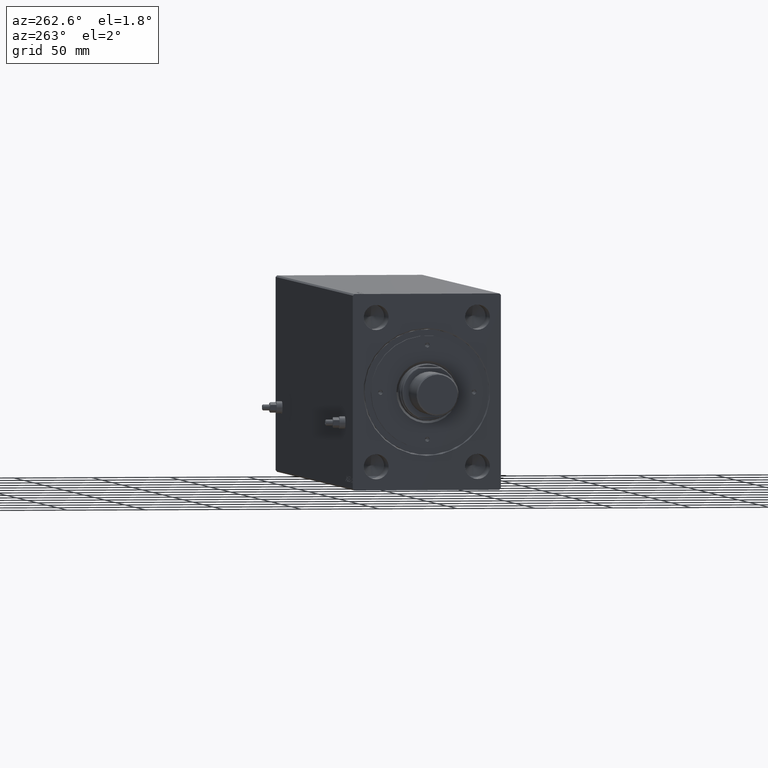
[diagram: clean part render]
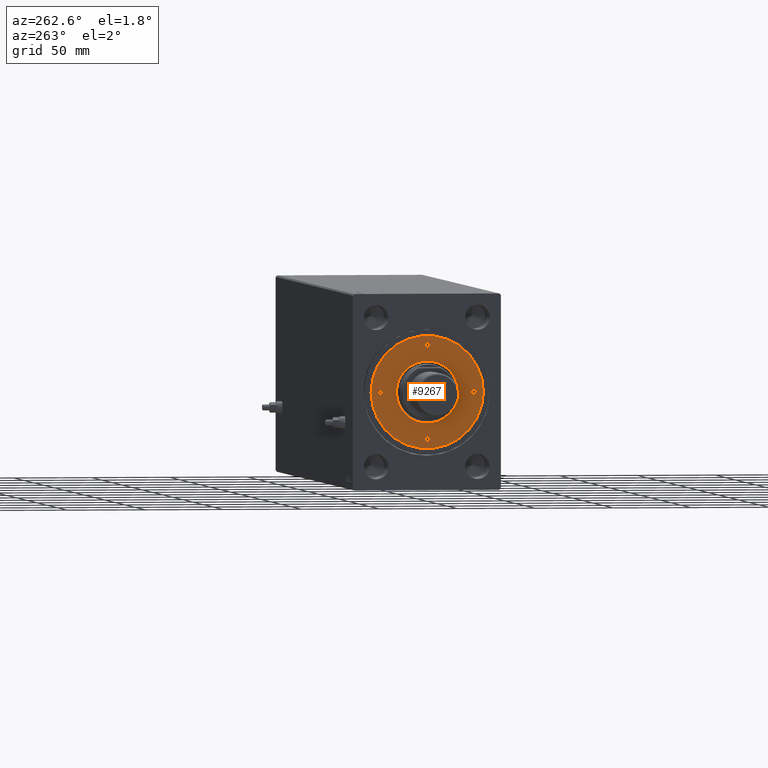
[diagram: same view with one face highlighted and labeled with its STEP entity id]
A machine part, auxiliary view. The second image highlights one B-rep face of the part: STEP entity #9267.
In plain terms, the highlighted planar face has unit normal (-1, 0, 0).
Its self-contained STEP definition (entity closure, byte-faithful):
#329 = DIRECTION ( 'NONE',  ( -0.000000000000000000, -0.000000000000000000, 1.000000000000000000 ) ) ;
#1784 = AXIS2_PLACEMENT_3D ( 'NONE', #24239, #20115, #17374 ) ;
#1953 = CARTESIAN_POINT ( 'NONE',  ( -28.50000000000000000, 0.000000000000000000, 13.99999999999999822 ) ) ;
#2231 = CARTESIAN_POINT ( 'NONE',  ( -31.50000000000000000, 1.836970198721022785E-16, 13.99999999999999822 ) ) ;
#2652 = CARTESIAN_POINT ( 'NONE',  ( 0.000000000000000000, 30.00000000000000000, 13.99999999999999822 ) ) ;
#3242 = DIRECTION ( 'NONE',  ( 1.000000000000000000, 0.000000000000000000, 0.000000000000000000 ) ) ;
#4482 = CARTESIAN_POINT ( 'NONE',  ( -1.499999999999996891, -30.00000000000000000, 13.99999999999999822 ) ) ;
#4779 = ORIENTED_EDGE ( 'NONE', *, *, #31869, .T. ) ;
#4789 = CARTESIAN_POINT ( 'NONE',  ( 0.000000000000000000, 0.000000000000000000, 13.99999999999999822 ) ) ;
#4848 = DIRECTION ( 'NONE',  ( 1.000000000000000000, 0.000000000000000000, 0.000000000000000000 ) ) ;
#5010 = DIRECTION ( 'NONE',  ( -0.000000000000000000, -0.000000000000000000, -1.000000000000000000 ) ) ;
#5040 = FACE_BOUND ( 'NONE', #33858, .T. ) ;
#5043 = CIRCLE ( 'NONE', #28464, 1.499999999999996891 ) ;
#5604 = EDGE_CURVE ( 'NONE', #22695, #32278, #14353, .T. ) ;
#5699 = CARTESIAN_POINT ( 'NONE',  ( 1.499999999999996891, -30.00000000000000000, 13.99999999999999822 ) ) ;
#5737 = VERTEX_POINT ( 'NONE', #40580 ) ;
#6103 = DIRECTION ( 'NONE',  ( 1.000000000000000000, 0.000000000000000000, 0.000000000000000000 ) ) ;
#6311 = DIRECTION ( 'NONE',  ( -0.000000000000000000, -0.000000000000000000, 1.000000000000000000 ) ) ;
#6618 = VERTEX_POINT ( 'NONE', #27065 ) ;
#6688 = CARTESIAN_POINT ( 'NONE',  ( -30.00000000000000000, 0.000000000000000000, 13.99999999999999822 ) ) ;
#6843 = VERTEX_POINT ( 'NONE', #19657 ) ;
#7194 = AXIS2_PLACEMENT_3D ( 'NONE', #22595, #12743, #8622 ) ;
#7315 = DIRECTION ( 'NONE',  ( 1.000000000000000000, 0.000000000000000000, 0.000000000000000000 ) ) ;
#7458 = EDGE_CURVE ( 'NONE', #6843, #6618, #26821, .T. ) ;
#8622 = DIRECTION ( 'NONE',  ( 1.000000000000000000, 0.000000000000000000, 0.000000000000000000 ) ) ;
#9144 = CIRCLE ( 'NONE', #34776, 1.499999999999994449 ) ;
#9267 = ADVANCED_FACE ( 'NONE', ( #15789, #22898, #33447, #5040, #36434, #33219 ), #43317, .T. ) ;
#10741 = DIRECTION ( 'NONE',  ( 0.000000000000000000, 0.000000000000000000, 1.000000000000000000 ) ) ;
#11271 = CIRCLE ( 'NONE', #28128, 19.79999999999997229 ) ;
#11717 = EDGE_CURVE ( 'NONE', #35162, #13668, #35746, .T. ) ;
#11722 = CARTESIAN_POINT ( 'NONE',  ( 30.00000000000000000, 0.000000000000000000, 13.99999999999999822 ) ) ;
#11999 = CIRCLE ( 'NONE', #25928, 1.499999999999997780 ) ;
#12490 = CIRCLE ( 'NONE', #30019, 1.499999999999996891 ) ;
#12743 = DIRECTION ( 'NONE',  ( -0.000000000000000000, -0.000000000000000000, 1.000000000000000000 ) ) ;
#13668 = VERTEX_POINT ( 'NONE', #5699 ) ;
#14292 = DIRECTION ( 'NONE',  ( 1.000000000000000000, 0.000000000000000000, 0.000000000000000000 ) ) ;
#14353 = CIRCLE ( 'NONE', #20207, 1.499999999999994449 ) ;
#15008 = ORIENTED_EDGE ( 'NONE', *, *, #5604, .F. ) ;
#15249 = AXIS2_PLACEMENT_3D ( 'NONE', #4789, #5010, #18976 ) ;
#15456 = EDGE_LOOP ( 'NONE', ( #22284, #4779 ) ) ;
#15564 = DIRECTION ( 'NONE',  ( 0.000000000000000000, 0.000000000000000000, 1.000000000000000000 ) ) ;
#15789 = FACE_BOUND ( 'NONE', #18061, .T. ) ;
#17142 = EDGE_CURVE ( 'NONE', #5737, #26279, #41604, .T. ) ;
#17221 = ORIENTED_EDGE ( 'NONE', *, *, #37440, .F. ) ;
#17231 = DIRECTION ( 'NONE',  ( 1.000000000000000000, 0.000000000000000000, 0.000000000000000000 ) ) ;
#17233 = AXIS2_PLACEMENT_3D ( 'NONE', #23818, #10741, #7315 ) ;
#17371 = AXIS2_PLACEMENT_3D ( 'NONE', #19006, #15564, #22219 ) ;
#17374 = DIRECTION ( 'NONE',  ( 1.000000000000000000, 0.000000000000000000, 0.000000000000000000 ) ) ;
#18061 = EDGE_LOOP ( 'NONE', ( #30671, #21433 ) ) ;
#18116 = DIRECTION ( 'NONE',  ( -0.000000000000000000, -0.000000000000000000, 1.000000000000000000 ) ) ;
#18132 = DIRECTION ( 'NONE',  ( -0.000000000000000000, -0.000000000000000000, 1.000000000000000000 ) ) ;
#18976 = DIRECTION ( 'NONE',  ( 1.000000000000000000, 0.000000000000000000, 0.000000000000000000 ) ) ;
#19006 = CARTESIAN_POINT ( 'NONE',  ( 0.000000000000000000, 0.000000000000000000, 13.99999999999999822 ) ) ;
#19657 = CARTESIAN_POINT ( 'NONE',  ( 1.499999999999996891, 30.00000000000000000, 13.99999999999999822 ) ) ;
#20115 = DIRECTION ( 'NONE',  ( 0.000000000000000000, 0.000000000000000000, 1.000000000000000000 ) ) ;
#20207 = AXIS2_PLACEMENT_3D ( 'NONE', #11722, #18132, #4848 ) ;
#20269 = AXIS2_PLACEMENT_3D ( 'NONE', #2652, #6311, #44819 ) ;
#20968 = CARTESIAN_POINT ( 'NONE',  ( 31.49999999999999289, 0.000000000000000000, 13.99999999999999822 ) ) ;
#21433 = ORIENTED_EDGE ( 'NONE', *, *, #29077, .F. ) ;
#21467 = CARTESIAN_POINT ( 'NONE',  ( 0.000000000000000000, 0.000000000000000000, 13.99999999999999822 ) ) ;
#21885 = EDGE_CURVE ( 'NONE', #6618, #6843, #12490, .T. ) ;
#22219 = DIRECTION ( 'NONE',  ( 1.000000000000000000, 0.000000000000000000, -0.000000000000000000 ) ) ;
#22284 = ORIENTED_EDGE ( 'NONE', *, *, #29203, .T. ) ;
#22347 = ORIENTED_EDGE ( 'NONE', *, *, #21885, .F. ) ;
#22595 = CARTESIAN_POINT ( 'NONE',  ( 0.000000000000000000, -30.00000000000000000, 13.99999999999999822 ) ) ;
#22695 = VERTEX_POINT ( 'NONE', #20968 ) ;
#22898 = FACE_BOUND ( 'NONE', #44905, .T. ) ;
#22916 = EDGE_LOOP ( 'NONE', ( #15008, #43503 ) ) ;
#23019 = AXIS2_PLACEMENT_3D ( 'NONE', #6688, #18116, #17231 ) ;
#23730 = CIRCLE ( 'NONE', #23019, 1.499999999999997780 ) ;
#23818 = CARTESIAN_POINT ( 'NONE',  ( 0.000000000000000000, 0.000000000000000000, 13.99999999999999822 ) ) ;
#24239 = CARTESIAN_POINT ( 'NONE',  ( 0.000000000000000000, 0.000000000000000000, 13.99999999999999822 ) ) ;
#24299 = DIRECTION ( 'NONE',  ( 1.000000000000000000, 0.000000000000000000, 0.000000000000000000 ) ) ;
#24481 = ORIENTED_EDGE ( 'NONE', *, *, #11717, .F. ) ;
#24679 = VERTEX_POINT ( 'NONE', #29607 ) ;
#24711 = CARTESIAN_POINT ( 'NONE',  ( 36.00000000000000000, 4.408728476930470856E-15, 13.99999999999999822 ) ) ;
#25462 = EDGE_CURVE ( 'NONE', #45208, #44953, #23730, .T. ) ;
#25928 = AXIS2_PLACEMENT_3D ( 'NONE', #44704, #27974, #24299 ) ;
#26244 = ORIENTED_EDGE ( 'NONE', *, *, #17142, .T. ) ;
#26279 = VERTEX_POINT ( 'NONE', #31902 ) ;
#26821 = CIRCLE ( 'NONE', #20269, 1.499999999999996891 ) ;
#27065 = CARTESIAN_POINT ( 'NONE',  ( -1.499999999999996891, 30.00000000000000000, 13.99999999999999822 ) ) ;
#27083 = ORIENTED_EDGE ( 'NONE', *, *, #40184, .T. ) ;
#27205 = DIRECTION ( 'NONE',  ( -0.000000000000000000, -0.000000000000000000, 1.000000000000000000 ) ) ;
#27745 = EDGE_CURVE ( 'NONE', #32278, #22695, #9144, .T. ) ;
#27974 = DIRECTION ( 'NONE',  ( -0.000000000000000000, -0.000000000000000000, 1.000000000000000000 ) ) ;
#28122 = DIRECTION ( 'NONE',  ( 1.000000000000000000, 0.000000000000000000, 0.000000000000000000 ) ) ;
#28128 = AXIS2_PLACEMENT_3D ( 'NONE', #21467, #31120, #28122 ) ;
#28464 = AXIS2_PLACEMENT_3D ( 'NONE', #38960, #35530, #3242 ) ;
#29077 = EDGE_CURVE ( 'NONE', #44953, #45208, #11999, .T. ) ;
#29203 = EDGE_CURVE ( 'NONE', #24679, #33689, #38356, .T. ) ;
#29607 = CARTESIAN_POINT ( 'NONE',  ( -36.00000000000000000, 0.000000000000000000, 13.99999999999999822 ) ) ;
#30019 = AXIS2_PLACEMENT_3D ( 'NONE', #37726, #27205, #6103 ) ;
#30671 = ORIENTED_EDGE ( 'NONE', *, *, #25462, .F. ) ;
#31120 = DIRECTION ( 'NONE',  ( -0.000000000000000000, -0.000000000000000000, -1.000000000000000000 ) ) ;
#31724 = CARTESIAN_POINT ( 'NONE',  ( 30.00000000000000000, 0.000000000000000000, 13.99999999999999822 ) ) ;
#31869 = EDGE_CURVE ( 'NONE', #33689, #24679, #33324, .T. ) ;
#31902 = CARTESIAN_POINT ( 'NONE',  ( -19.79999999999997229, 2.424800662311756249E-15, 13.99999999999999822 ) ) ;
#32278 = VERTEX_POINT ( 'NONE', #44742 ) ;
#33219 = FACE_OUTER_BOUND ( 'NONE', #15456, .T. ) ;
#33324 = CIRCLE ( 'NONE', #17233, 36.00000000000000000 ) ;
#33447 = FACE_BOUND ( 'NONE', #22916, .T. ) ;
#33689 = VERTEX_POINT ( 'NONE', #24711 ) ;
#33858 = EDGE_LOOP ( 'NONE', ( #17221, #24481 ) ) ;
#34776 = AXIS2_PLACEMENT_3D ( 'NONE', #31724, #329, #14292 ) ;
#35162 = VERTEX_POINT ( 'NONE', #4482 ) ;
#35308 = ORIENTED_EDGE ( 'NONE', *, *, #7458, .F. ) ;
#35530 = DIRECTION ( 'NONE',  ( -0.000000000000000000, -0.000000000000000000, 1.000000000000000000 ) ) ;
#35746 = CIRCLE ( 'NONE', #7194, 1.499999999999996891 ) ;
#36434 = FACE_BOUND ( 'NONE', #39574, .T. ) ;
#37440 = EDGE_CURVE ( 'NONE', #13668, #35162, #5043, .T. ) ;
#37726 = CARTESIAN_POINT ( 'NONE',  ( 0.000000000000000000, 30.00000000000000000, 13.99999999999999822 ) ) ;
#38356 = CIRCLE ( 'NONE', #1784, 36.00000000000000000 ) ;
#38960 = CARTESIAN_POINT ( 'NONE',  ( 0.000000000000000000, -30.00000000000000000, 13.99999999999999822 ) ) ;
#39574 = EDGE_LOOP ( 'NONE', ( #26244, #27083 ) ) ;
#40184 = EDGE_CURVE ( 'NONE', #26279, #5737, #11271, .T. ) ;
#40580 = CARTESIAN_POINT ( 'NONE',  ( 19.79999999999997229, 0.000000000000000000, 13.99999999999999822 ) ) ;
#41604 = CIRCLE ( 'NONE', #15249, 19.79999999999997229 ) ;
#43317 = PLANE ( 'NONE',  #17371 ) ;
#43503 = ORIENTED_EDGE ( 'NONE', *, *, #27745, .F. ) ;
#44704 = CARTESIAN_POINT ( 'NONE',  ( -30.00000000000000000, 0.000000000000000000, 13.99999999999999822 ) ) ;
#44742 = CARTESIAN_POINT ( 'NONE',  ( 28.50000000000000355, 1.836970198721022785E-16, 13.99999999999999822 ) ) ;
#44819 = DIRECTION ( 'NONE',  ( 1.000000000000000000, 0.000000000000000000, 0.000000000000000000 ) ) ;
#44905 = EDGE_LOOP ( 'NONE', ( #35308, #22347 ) ) ;
#44953 = VERTEX_POINT ( 'NONE', #2231 ) ;
#45208 = VERTEX_POINT ( 'NONE', #1953 ) ;